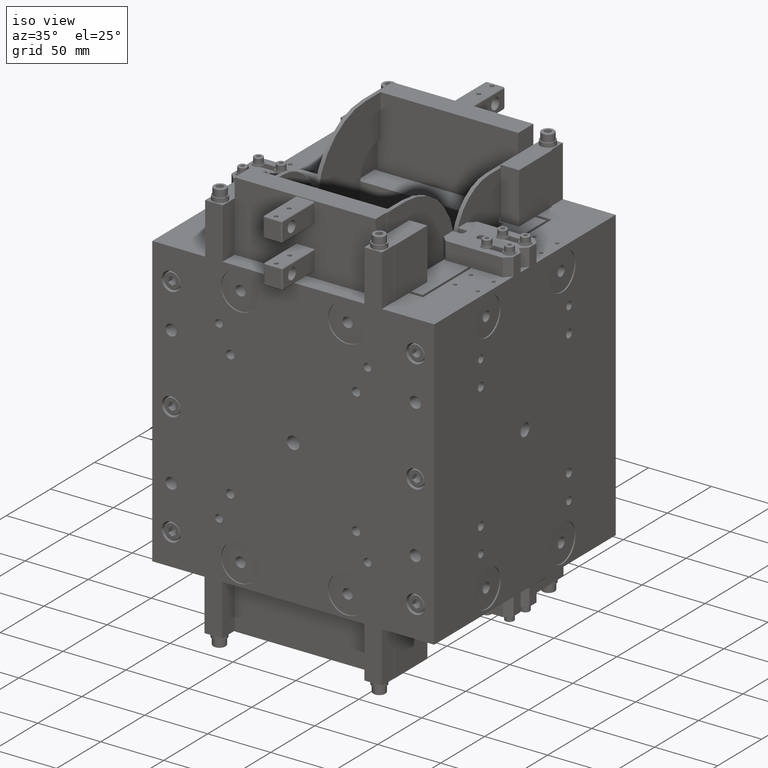
[diagram: clean part render]
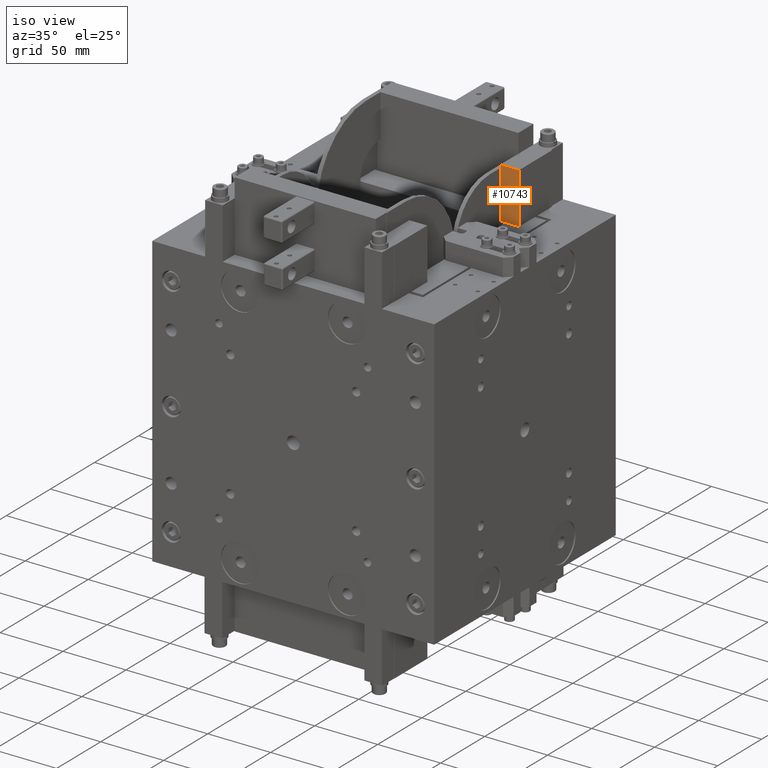
[diagram: same view with one face highlighted and labeled with its STEP entity id]
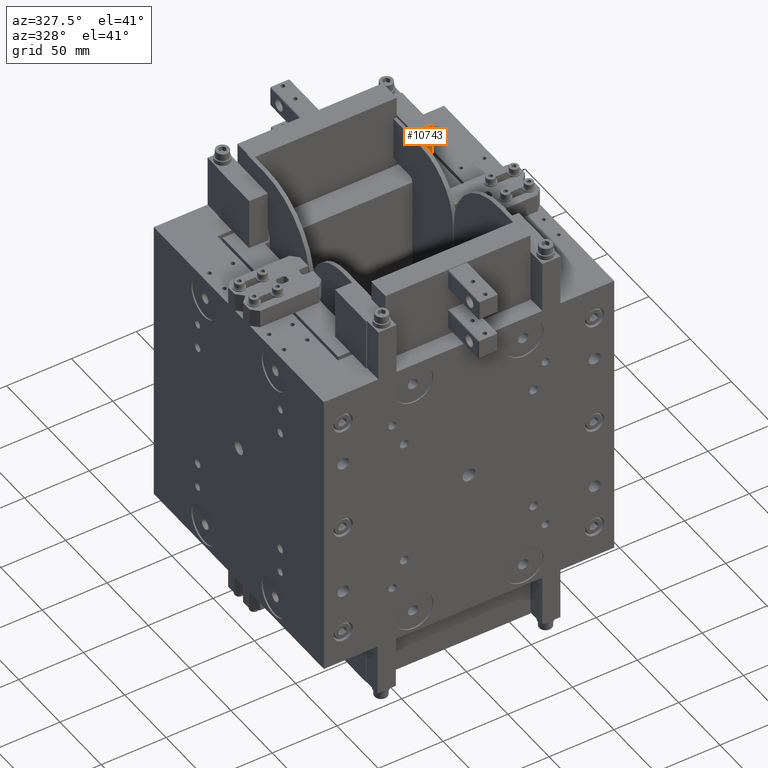
[diagram: same view with one face highlighted and labeled with its STEP entity id]
A machine part, iso view. The second image highlights one B-rep face of the part: STEP entity #10743.
A second angle (auxiliary view) of the same face is appended — the face is thin or edge-on in the first view.
In plain terms, the highlighted planar face has unit normal (-0, -1, 0).
Its self-contained STEP definition (entity closure, byte-faithful):
#2213=FACE_OUTER_BOUND('',#3056,.T.);
#3056=EDGE_LOOP('',(#8603,#8604,#8605,#8606,#8607,#8608,#8609,#8610));
#3793=LINE('',#17287,#4559);
#3840=LINE('',#17389,#4606);
#3846=LINE('',#17400,#4612);
#3847=LINE('',#17403,#4613);
#3853=LINE('',#17413,#4619);
#3854=LINE('',#17416,#4620);
#3855=LINE('',#17417,#4621);
#3856=LINE('',#17418,#4622);
#4559=VECTOR('',#13996,34.4544210123608);
#4606=VECTOR('',#14075,1.99999999999999);
#4612=VECTOR('',#14083,14.8403485833756);
#4613=VECTOR('',#14086,14.8403485833756);
#4619=VECTOR('',#14096,40.4999999999999);
#4620=VECTOR('',#14099,0.500000000376133);
#4621=VECTOR('',#14100,4.04557898765445);
#4622=VECTOR('',#14101,0.500000000376133);
#5462=VERTEX_POINT('',#17284);
#5463=VERTEX_POINT('',#17286);
#5501=VERTEX_POINT('',#17386);
#5502=VERTEX_POINT('',#17388);
#5503=VERTEX_POINT('',#17392);
#5506=VERTEX_POINT('',#17398);
#5507=VERTEX_POINT('',#17402);
#5510=VERTEX_POINT('',#17415);
#6552=EDGE_CURVE('',#5462,#5463,#3793,.T.);
#6602=EDGE_CURVE('',#5502,#5501,#3840,.T.);
#6608=EDGE_CURVE('',#5506,#5503,#3846,.T.);
#6609=EDGE_CURVE('',#5502,#5507,#3847,.T.);
#6615=EDGE_CURVE('',#5507,#5506,#3853,.T.);
#6616=EDGE_CURVE('',#5510,#5462,#3854,.T.);
#6617=EDGE_CURVE('',#5510,#5503,#3855,.T.);
#6618=EDGE_CURVE('',#5463,#5501,#3856,.T.);
#8603=ORIENTED_EDGE('',*,*,#6616,.F.);
#8604=ORIENTED_EDGE('',*,*,#6617,.T.);
#8605=ORIENTED_EDGE('',*,*,#6608,.F.);
#8606=ORIENTED_EDGE('',*,*,#6615,.F.);
#8607=ORIENTED_EDGE('',*,*,#6609,.F.);
#8608=ORIENTED_EDGE('',*,*,#6602,.T.);
#8609=ORIENTED_EDGE('',*,*,#6618,.F.);
#8610=ORIENTED_EDGE('',*,*,#6552,.F.);
#9742=PLANE('',#11683);
#10743=ADVANCED_FACE('',(#2213),#9742,.T.);
#11683=AXIS2_PLACEMENT_3D('',#17414,#14097,#14098);
#13996=DIRECTION('',(0.,0.,1.));
#14075=DIRECTION('',(0.,0.,-1.));
#14083=DIRECTION('',(-1.,1.93770925231245E-11,0.));
#14086=DIRECTION('',(1.,-1.93770925231245E-11,0.));
#14096=DIRECTION('',(0.,0.,-1.));
#14097=DIRECTION('center_axis',(-1.93770925231245E-11,-1.,0.));
#14098=DIRECTION('ref_axis',(-1.,1.93772109469137E-11,0.));
#14099=DIRECTION('',(1.,0.,0.));
#14100=DIRECTION('',(0.,0.,-1.));
#14101=DIRECTION('',(-1.,1.93770925231245E-11,0.));
#17284=CARTESIAN_POINT('',(56.5,52.0293933282649,119.045578987642));
#17286=CARTESIAN_POINT('',(56.5,52.0293933282649,153.500000000002));
#17287=CARTESIAN_POINT('',(56.5,52.0293933282649,77.5962671195025));
#17386=CARTESIAN_POINT('',(55.9999999996239,52.0293933282746,153.5));
#17388=CARTESIAN_POINT('',(55.9999999996239,52.0293933282746,155.5));
#17389=CARTESIAN_POINT('',(55.9999999996239,52.0293933282746,155.5));
#17392=CARTESIAN_POINT('',(55.9999999996239,52.0293933282746,115.));
#17398=CARTESIAN_POINT('',(70.8403485829995,52.029393327987,115.));
#17400=CARTESIAN_POINT('',(35.4201742908025,52.0293933286733,115.));
#17402=CARTESIAN_POINT('',(70.8403485829995,52.029393327987,155.5));
#17403=CARTESIAN_POINT('',(55.9999999996239,52.0293933282746,155.5));
#17413=CARTESIAN_POINT('',(70.8403485829995,52.029393327987,155.5));
#17414=CARTESIAN_POINT('Origin',(70.8403485829995,52.029393327987,155.5));
#17415=CARTESIAN_POINT('',(55.9999999996239,52.0293933282746,119.045578987654));
#17416=CARTESIAN_POINT('',(55.,52.0293933282939,119.045578987664));
#17417=CARTESIAN_POINT('',(55.9999999996239,52.0293933282746,155.5));
#17418=CARTESIAN_POINT('',(62.1701742912384,52.029393328155,153.5));